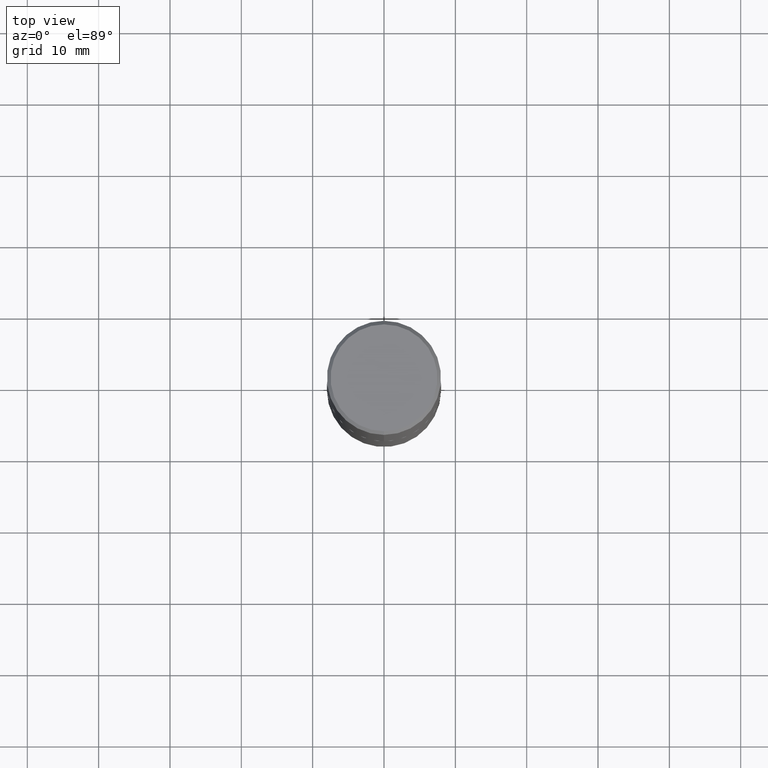
[diagram: clean part render]
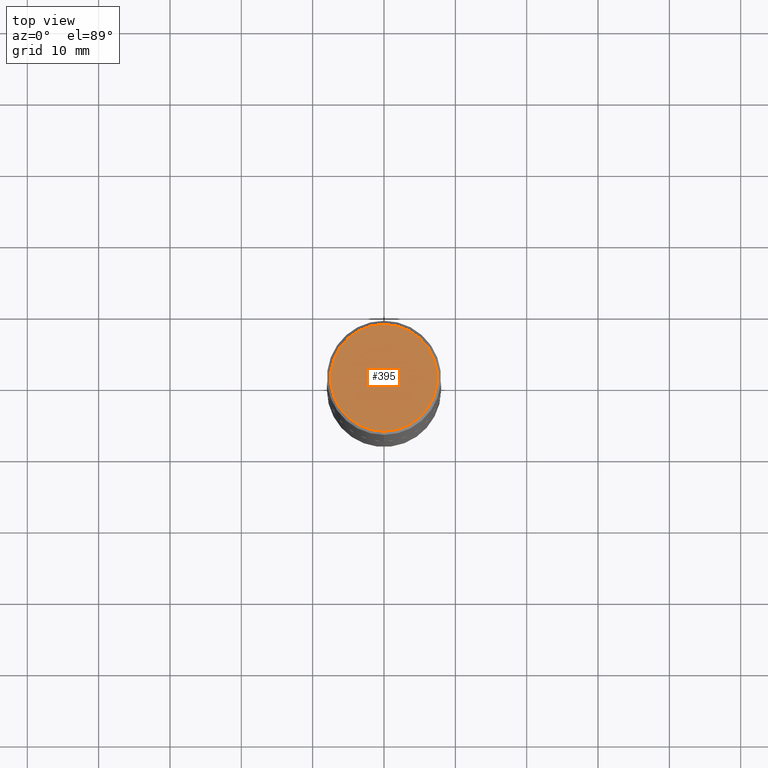
[diagram: same view with one face highlighted and labeled with its STEP entity id]
A machine part, top view. The second image highlights one B-rep face of the part: STEP entity #395.
In plain terms, the highlighted planar face has unit normal (0, -0, -1).
Its self-contained STEP definition (entity closure, byte-faithful):
#23 = PLANE ( 'NONE',  #307 ) ;
#29 = EDGE_CURVE ( 'NONE', #202, #278, #131, .T. ) ;
#74 = ORIENTED_EDGE ( 'NONE', *, *, #315, .T. ) ;
#90 = DIRECTION ( 'NONE',  ( -2.446965979212638438E-29, 3.489337301853966019E-15, 1.000000000000000000 ) ) ;
#93 = ORIENTED_EDGE ( 'NONE', *, *, #29, .T. ) ;
#119 = FACE_OUTER_BOUND ( 'NONE', #207, .T. ) ;
#121 = DIRECTION ( 'NONE',  ( 6.982962677686265922E-15, 1.000000000000000000, -3.489337301853966019E-15 ) ) ;
#131 = CIRCLE ( 'NONE', #360, 0.2949500000000003230 ) ;
#157 = CARTESIAN_POINT ( 'NONE',  ( 4.506783297642337076E-45, -6.426606338391306016E-31, -1.841784207842761497E-16 ) ) ;
#158 = CARTESIAN_POINT ( 'NONE',  ( 2.059624841783566430E-15, 0.2949500000000003230, -1.121269247573966471E-15 ) ) ;
#182 = DIRECTION ( 'NONE',  ( -2.446965979212638438E-29, 3.489337301853966019E-15, 1.000000000000000000 ) ) ;
#202 = VERTEX_POINT ( 'NONE', #364 ) ;
#207 = EDGE_LOOP ( 'NONE', ( #93, #74 ) ) ;
#225 = CARTESIAN_POINT ( 'NONE',  ( -2.092108864420429609E-15, -0.2949500000000003230, 8.450016163975523199E-16 ) ) ;
#243 = CARTESIAN_POINT ( 'NONE',  ( 4.506783297642337076E-45, -6.426606338391306016E-31, -1.841784207842761497E-16 ) ) ;
#271 = CIRCLE ( 'NONE', #341, 0.2949500000000003230 ) ;
#278 = VERTEX_POINT ( 'NONE', #225 ) ;
#304 = DIRECTION ( 'NONE',  ( -6.982962677686265922E-15, -1.000000000000000000, 3.489337301853966019E-15 ) ) ;
#307 = AXIS2_PLACEMENT_3D ( 'NONE', #158, #404, #121 ) ;
#315 = EDGE_CURVE ( 'NONE', #278, #202, #271, .T. ) ;
#339 = DIRECTION ( 'NONE',  ( -6.982962677686265922E-15, -1.000000000000000000, 3.489337301853966019E-15 ) ) ;
#341 = AXIS2_PLACEMENT_3D ( 'NONE', #243, #182, #304 ) ;
#360 = AXIS2_PLACEMENT_3D ( 'NONE', #157, #90, #339 ) ;
#364 = CARTESIAN_POINT ( 'NONE',  ( 2.129454468560428545E-15, 0.2949500000000003230, -1.213358457966104521E-15 ) ) ;
#395 = ADVANCED_FACE ( 'NONE', ( #119 ), #23, .F. ) ;
#404 = DIRECTION ( 'NONE',  ( 2.446965979212638158E-29, -3.489337301853966019E-15, -1.000000000000000000 ) ) ;